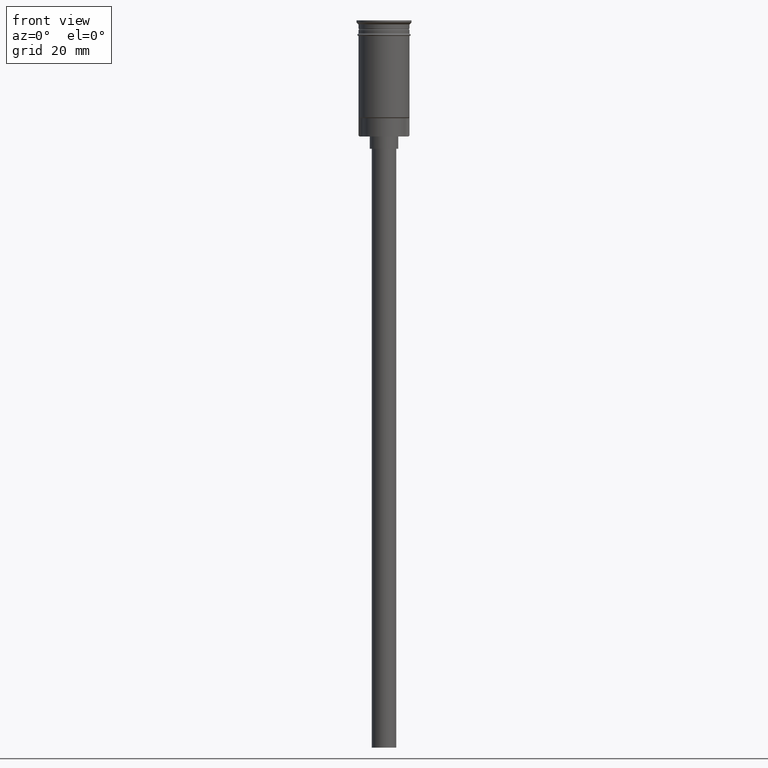
[diagram: clean part render]
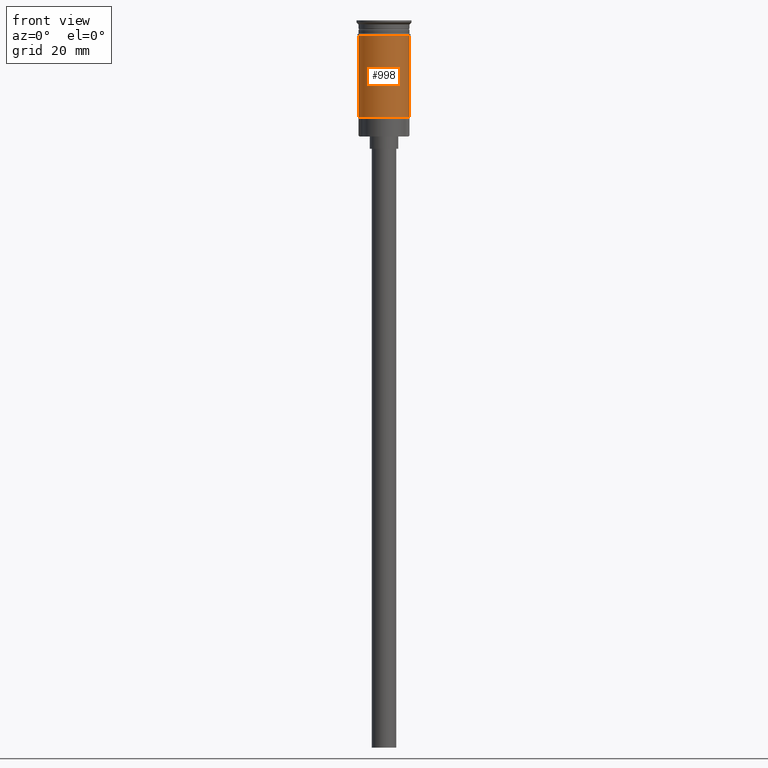
[diagram: same view with one face highlighted and labeled with its STEP entity id]
A machine part, front view. The second image highlights one B-rep face of the part: STEP entity #998.
In plain terms, the highlighted cylindrical surface (edge-blend (fillet) strip) has radius 6.25 mm, axis along (-0, -0, 1).
Its self-contained STEP definition (entity closure, byte-faithful):
#131 = VERTEX_POINT ( 'NONE', #316 ) ;
#141 = CIRCLE ( 'NONE', #1171, 6.249999999999997335 ) ;
#158 = CARTESIAN_POINT ( 'NONE',  ( -6.249999999999997335, 7.654042494670954648E-16, 0.000000000000000000 ) ) ;
#189 = VECTOR ( 'NONE', #1103, 1000.000000000000000 ) ;
#192 = VERTEX_POINT ( 'NONE', #895 ) ;
#194 = EDGE_CURVE ( 'NONE', #131, #371, #1115, .T. ) ;
#250 = DIRECTION ( 'NONE',  ( -0.000000000000000000, -0.000000000000000000, 1.000000000000000000 ) ) ;
#316 = CARTESIAN_POINT ( 'NONE',  ( -6.250000000000000000, 7.654042494670958593E-16, -3.799999999999998490 ) ) ;
#348 = CARTESIAN_POINT ( 'NONE',  ( 6.250000000000000000, 0.000000000000000000, -3.799999999999998490 ) ) ;
#371 = VERTEX_POINT ( 'NONE', #348 ) ;
#375 = DIRECTION ( 'NONE',  ( -1.000000000000000000, 0.000000000000000000, 0.000000000000000000 ) ) ;
#379 = EDGE_LOOP ( 'NONE', ( #558, #440, #666, #1154 ) ) ;
#395 = AXIS2_PLACEMENT_3D ( 'NONE', #634, #1157, #407 ) ;
#407 = DIRECTION ( 'NONE',  ( 1.000000000000000000, 0.000000000000000000, 0.000000000000000000 ) ) ;
#422 = AXIS2_PLACEMENT_3D ( 'NONE', #1333, #664, #1561 ) ;
#440 = ORIENTED_EDGE ( 'NONE', *, *, #1273, .T. ) ;
#480 = VECTOR ( 'NONE', #250, 1000.000000000000000 ) ;
#558 = ORIENTED_EDGE ( 'NONE', *, *, #848, .F. ) ;
#573 = VERTEX_POINT ( 'NONE', #1057 ) ;
#634 = CARTESIAN_POINT ( 'NONE',  ( 0.000000000000000000, 0.000000000000000000, -3.799999999999998490 ) ) ;
#664 = DIRECTION ( 'NONE',  ( -0.000000000000000000, -0.000000000000000000, 1.000000000000000000 ) ) ;
#666 = ORIENTED_EDGE ( 'NONE', *, *, #704, .T. ) ;
#704 = EDGE_CURVE ( 'NONE', #573, #371, #1498, .T. ) ;
#774 = CARTESIAN_POINT ( 'NONE',  ( 0.000000000000000000, 0.000000000000000000, -23.80000000000000782 ) ) ;
#848 = EDGE_CURVE ( 'NONE', #192, #131, #909, .T. ) ;
#895 = CARTESIAN_POINT ( 'NONE',  ( -6.249999999999995559, 0.000000000000000000, -23.80000000000000782 ) ) ;
#909 = LINE ( 'NONE', #158, #480 ) ;
#947 = FACE_OUTER_BOUND ( 'NONE', #379, .T. ) ;
#998 = ADVANCED_FACE ( 'NONE', ( #947 ), #1441, .T. ) ;
#1057 = CARTESIAN_POINT ( 'NONE',  ( 6.249999999999997335, 7.654042494670953662E-16, -23.80000000000000782 ) ) ;
#1103 = DIRECTION ( 'NONE',  ( -0.000000000000000000, -0.000000000000000000, 1.000000000000000000 ) ) ;
#1115 = CIRCLE ( 'NONE', #395, 6.250000000000000000 ) ;
#1154 = ORIENTED_EDGE ( 'NONE', *, *, #194, .F. ) ;
#1157 = DIRECTION ( 'NONE',  ( -0.000000000000000000, -0.000000000000000000, 1.000000000000000000 ) ) ;
#1171 = AXIS2_PLACEMENT_3D ( 'NONE', #774, #1287, #375 ) ;
#1273 = EDGE_CURVE ( 'NONE', #192, #573, #141, .T. ) ;
#1287 = DIRECTION ( 'NONE',  ( -0.000000000000000000, -0.000000000000000000, 1.000000000000000000 ) ) ;
#1333 = CARTESIAN_POINT ( 'NONE',  ( 0.000000000000000000, 0.000000000000000000, 0.000000000000000000 ) ) ;
#1441 = CYLINDRICAL_SURFACE ( 'NONE', #422, 6.249999999999997335 ) ;
#1498 = LINE ( 'NONE', #1600, #189 ) ;
#1561 = DIRECTION ( 'NONE',  ( 1.000000000000000000, 0.000000000000000000, 0.000000000000000000 ) ) ;
#1600 = CARTESIAN_POINT ( 'NONE',  ( 6.249999999999997335, 0.000000000000000000, 0.000000000000000000 ) ) ;